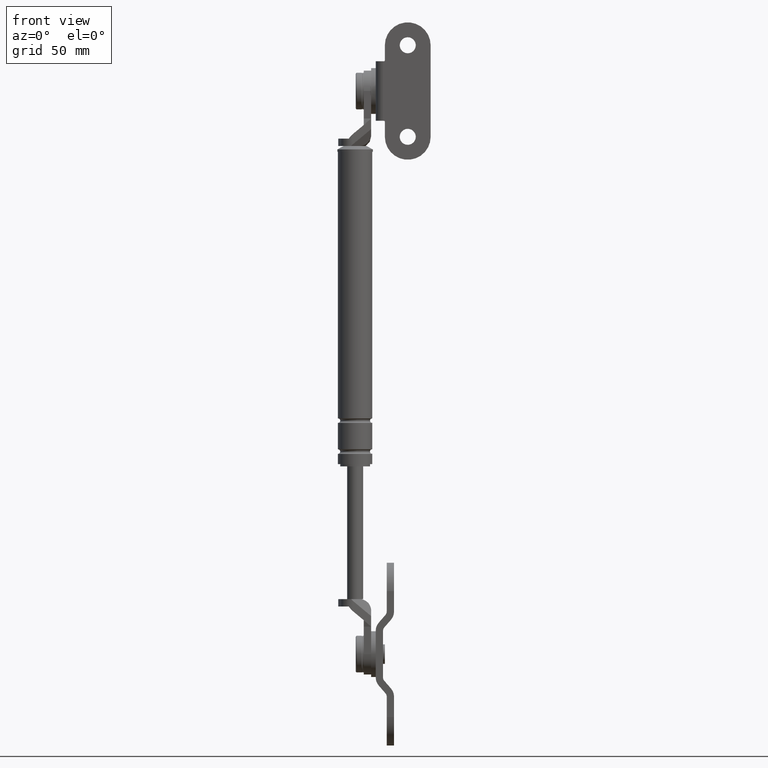
[diagram: clean part render]
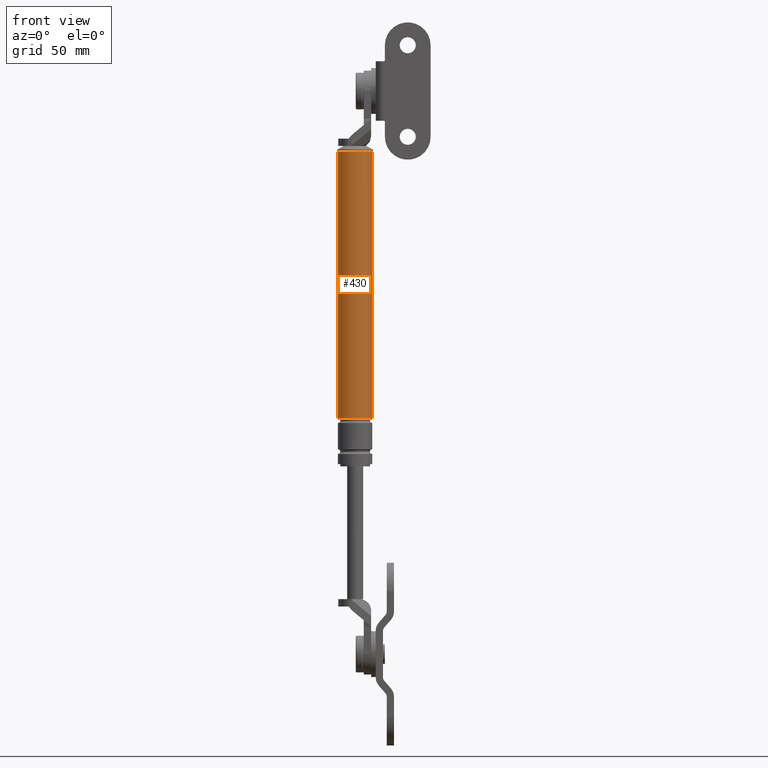
[diagram: same view with one face highlighted and labeled with its STEP entity id]
A machine part, front view. The second image highlights one B-rep face of the part: STEP entity #430.
In plain terms, the highlighted cylindrical surface (edge-blend (fillet) strip) has radius 7.5 mm, axis along (0, 0, 1).
Its self-contained STEP definition (entity closure, byte-faithful):
#430=ADVANCED_FACE('',(#1550),#1549,.T.);
#1549=CYLINDRICAL_SURFACE('',#2691,7.50000002618E+000);
#1550=FACE_OUTER_BOUND('',#2692,.T.);
#2688=CARTESIAN_POINT('',(0.00000000000E+000,0.00000000000E+000,0.00000000000E+000));
#2689=DIRECTION('',(-0.00000000000E+000,-0.00000000000E+000,1.00000000000E+000));
#2690=DIRECTION('',(1.00000000000E+000,0.00000000000E+000,0.00000000000E+000));
#2691=AXIS2_PLACEMENT_3D('',#2688,#2689,#2690);
#2692=EDGE_LOOP('',(#3506,#3507,#3508,#3509));
#3506=ORIENTED_EDGE('',*,*,#3965,.F.);
#3507=ORIENTED_EDGE('',*,*,#3962,.T.);
#3508=ORIENTED_EDGE('',*,*,#3915,.F.);
#3509=ORIENTED_EDGE('',*,*,#3964,.F.);
#3915=EDGE_CURVE('',#5529,#5530,#5531,.T.);
#3962=EDGE_CURVE('',#5835,#5530,#5836,.T.);
#3964=EDGE_CURVE('',#5842,#5529,#5849,.T.);
#3965=EDGE_CURVE('',#5835,#5842,#5855,.T.);
#5529=VERTEX_POINT('',#7319);
#5530=VERTEX_POINT('',#7320);
#5531=CIRCLE('',#7324,7.50000002618E+000);
#5835=VERTEX_POINT('',#7501);
#5836=(BOUNDED_CURVE() B_SPLINE_CURVE(1,(#7502,#7503),.UNSPECIFIED.,.F.,.F.) B_SPLINE_CURVE_WITH_KNOTS((2,2),(7.32600813727E-002,9.26739918579E-001),.UNSPECIFIED.) CURVE() GEOMETRIC_REPRESENTATION_ITEM() RATIONAL_B_SPLINE_CURVE((1.00000000000E+000,1.00000000000E+000)) REPRESENTATION_ITEM('') );
#5842=VERTEX_POINT('',#7504);
#5849=(BOUNDED_CURVE() B_SPLINE_CURVE(1,(#7509,#7510),.UNSPECIFIED.,.F.,.F.) B_SPLINE_CURVE_WITH_KNOTS((2,2),(7.32600813106E-002,9.26739918689E-001),.UNSPECIFIED.) CURVE() GEOMETRIC_REPRESENTATION_ITEM() RATIONAL_B_SPLINE_CURVE((7.50000000000E-001,7.50000000000E-001)) REPRESENTATION_ITEM('') );
#5855=CIRCLE('',#7514,7.50000005236E+000);
#7319=CARTESIAN_POINT('',(-7.50000002618E+000,0.00000000000E+000,8.64999850000E+001));
#7320=CARTESIAN_POINT('',(7.50000002618E+000,1.48029736617E-015,8.64999850000E+001));
#7321=CARTESIAN_POINT('',(0.00000000000E+000,0.00000000000E+000,8.64999850000E+001));
#7322=DIRECTION('',(0.00000000000E+000,0.00000000000E+000,1.00000000000E+000));
#7323=DIRECTION('',(-1.00000000000E+000,-1.22460635382E-016,0.00000000000E+000));
#7324=AXIS2_PLACEMENT_3D('',#7321,#7322,#7323);
#7501=CARTESIAN_POINT('',(7.50000005236E+000,8.88178419700E-016,-3.00000000000E+001));
#7502=CARTESIAN_POINT('',(7.50000002618E+000,0.00000000000E+000,-2.99999999915E+001));
#7503=CARTESIAN_POINT('',(7.50000002618E+000,0.00000000000E+000,8.64999849849E+001));
#7504=CARTESIAN_POINT('',(-7.50000005236E+000,0.00000000000E+000,-3.00000000000E+001));
#7509=CARTESIAN_POINT('',(-7.50000002618E+000,0.00000000000E+000,-3.00000000000E+001));
#7510=CARTESIAN_POINT('',(-7.50000002618E+000,0.00000000000E+000,8.64999850000E+001));
#7511=CARTESIAN_POINT('',(0.00000000000E+000,0.00000000000E+000,-3.00000000000E+001));
#7512=DIRECTION('',(-0.00000000000E+000,0.00000000000E+000,-1.00000000000E+000));
#7513=DIRECTION('',(-1.00000000000E+000,-1.22460635382E-016,0.00000000000E+000));
#7514=AXIS2_PLACEMENT_3D('',#7511,#7512,#7513);